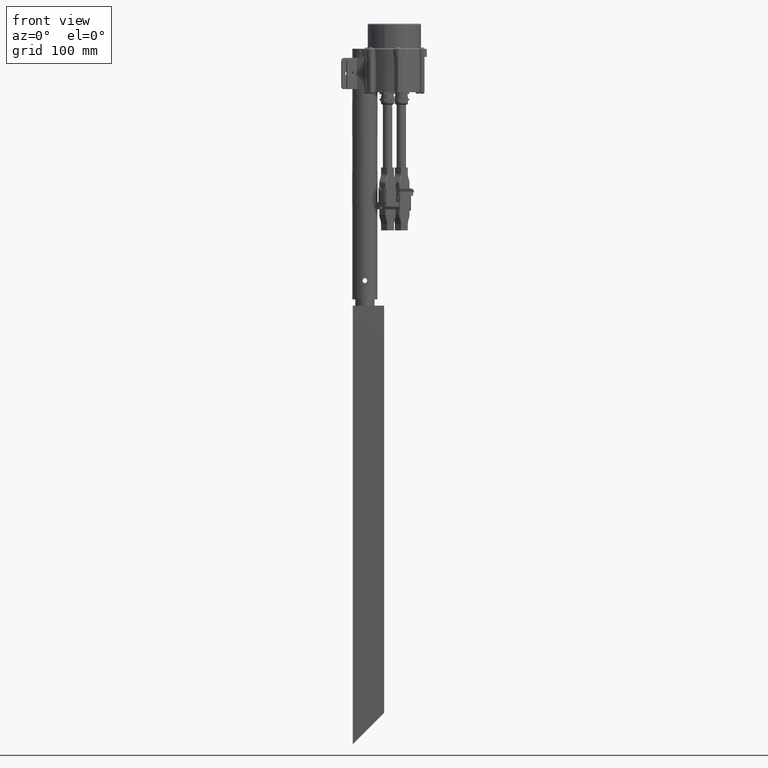
[diagram: clean part render]
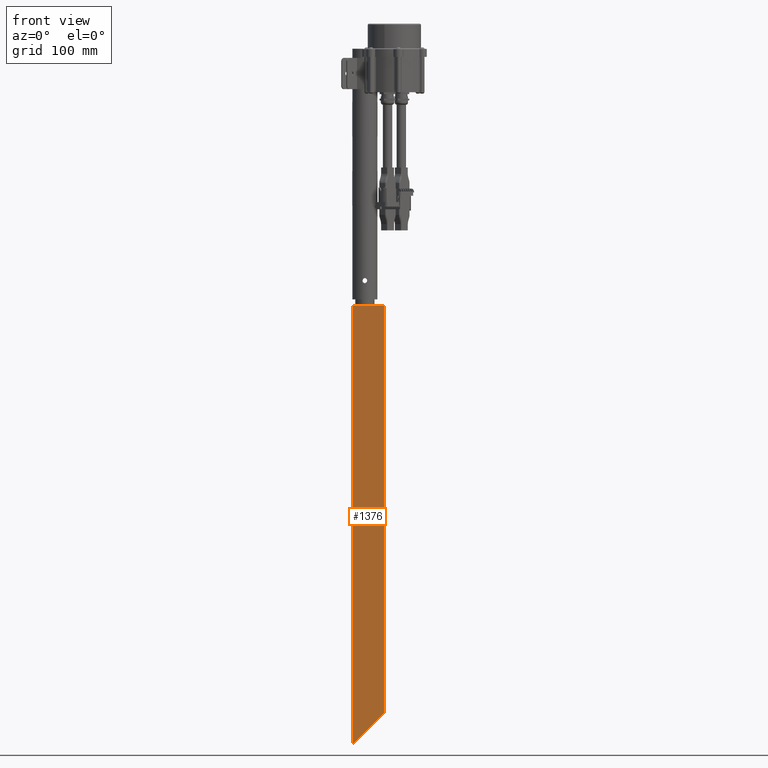
[diagram: same view with one face highlighted and labeled with its STEP entity id]
A machine part, front view. The second image highlights one B-rep face of the part: STEP entity #1376.
In plain terms, the highlighted planar face has unit normal (0, 1, 0).
Its self-contained STEP definition (entity closure, byte-faithful):
#859 = DIRECTION ( 'NONE',  ( -0.0000000000000000000, -0.0000000000000000000, -1.000000000000000000 ) ) ;
#1086 = VECTOR ( 'NONE', #27360, 1000.000000000000100 ) ;
#1376 = ADVANCED_FACE ( 'NONE', ( #34263 ), #17576, .F. ) ;
#2269 = ORIENTED_EDGE ( 'NONE', *, *, #33295, .T. ) ;
#2948 = LINE ( 'NONE', #15541, #1086 ) ;
#3399 = LINE ( 'NONE', #12219, #33789 ) ;
#4376 = VERTEX_POINT ( 'NONE', #21563 ) ;
#5006 = CARTESIAN_POINT ( 'NONE',  ( 0.0000000000000000000, 0.0000000000000000000, 700.0000000000000000 ) ) ;
#6491 = EDGE_LOOP ( 'NONE', ( #15584, #19574, #25629, #2269 ) ) ;
#8005 = VERTEX_POINT ( 'NONE', #37871 ) ;
#8628 = LINE ( 'NONE', #21480, #15528 ) ;
#8636 = EDGE_CURVE ( 'NONE', #20871, #12368, #3399, .T. ) ;
#8789 = DIRECTION ( 'NONE',  ( 0.0000000000000000000, 1.000000000000000000, 0.0000000000000000000 ) ) ;
#12219 = CARTESIAN_POINT ( 'NONE',  ( 0.0000000000000000000, 0.0000000000000000000, 700.0000000000000000 ) ) ;
#12368 = VERTEX_POINT ( 'NONE', #15543 ) ;
#13690 = CARTESIAN_POINT ( 'NONE',  ( 50.00000000000000000, 0.0000000000000000000, 700.0000000000000000 ) ) ;
#15528 = VECTOR ( 'NONE', #859, 1000.000000000000000 ) ;
#15541 = CARTESIAN_POINT ( 'NONE',  ( 0.0000000000000000000, 0.0000000000000000000, 0.0000000000000000000 ) ) ;
#15543 = CARTESIAN_POINT ( 'NONE',  ( 50.00000000000000000, 0.0000000000000000000, 700.0000000000000000 ) ) ;
#15584 = ORIENTED_EDGE ( 'NONE', *, *, #34877, .T. ) ;
#17576 = PLANE ( 'NONE',  #34212 ) ;
#19574 = ORIENTED_EDGE ( 'NONE', *, *, #32383, .F. ) ;
#20871 = VERTEX_POINT ( 'NONE', #5006 ) ;
#21480 = CARTESIAN_POINT ( 'NONE',  ( 0.0000000000000000000, 0.0000000000000000000, 700.0000000000000000 ) ) ;
#21563 = CARTESIAN_POINT ( 'NONE',  ( 50.00000000000000700, 0.0000000000000000000, 50.00000000000000000 ) ) ;
#22520 = VECTOR ( 'NONE', #25532, 1000.000000000000000 ) ;
#23471 = CARTESIAN_POINT ( 'NONE',  ( 0.0000000000000000000, 0.0000000000000000000, 700.0000000000000000 ) ) ;
#25532 = DIRECTION ( 'NONE',  ( -0.0000000000000000000, -0.0000000000000000000, -1.000000000000000000 ) ) ;
#25629 = ORIENTED_EDGE ( 'NONE', *, *, #8636, .F. ) ;
#27360 = DIRECTION ( 'NONE',  ( 0.7071067811865474600, 0.0000000000000000000, 0.7071067811865474600 ) ) ;
#29381 = DIRECTION ( 'NONE',  ( 0.0000000000000000000, -0.0000000000000000000, 1.000000000000000000 ) ) ;
#30300 = LINE ( 'NONE', #13690, #22520 ) ;
#32383 = EDGE_CURVE ( 'NONE', #12368, #4376, #30300, .T. ) ;
#32773 = DIRECTION ( 'NONE',  ( 1.000000000000000000, 0.0000000000000000000, 0.0000000000000000000 ) ) ;
#33295 = EDGE_CURVE ( 'NONE', #20871, #8005, #8628, .T. ) ;
#33789 = VECTOR ( 'NONE', #32773, 1000.000000000000000 ) ;
#34212 = AXIS2_PLACEMENT_3D ( 'NONE', #23471, #8789, #29381 ) ;
#34263 = FACE_OUTER_BOUND ( 'NONE', #6491, .T. ) ;
#34877 = EDGE_CURVE ( 'NONE', #8005, #4376, #2948, .T. ) ;
#37871 = CARTESIAN_POINT ( 'NONE',  ( 0.0000000000000000000, 0.0000000000000000000, 0.0000000000000000000 ) ) ;